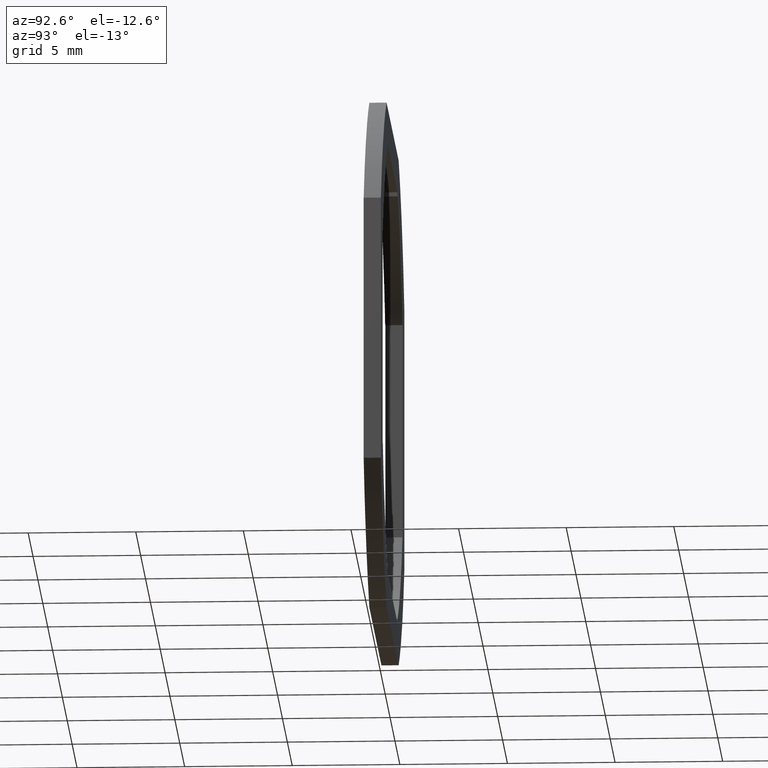
[diagram: clean part render]
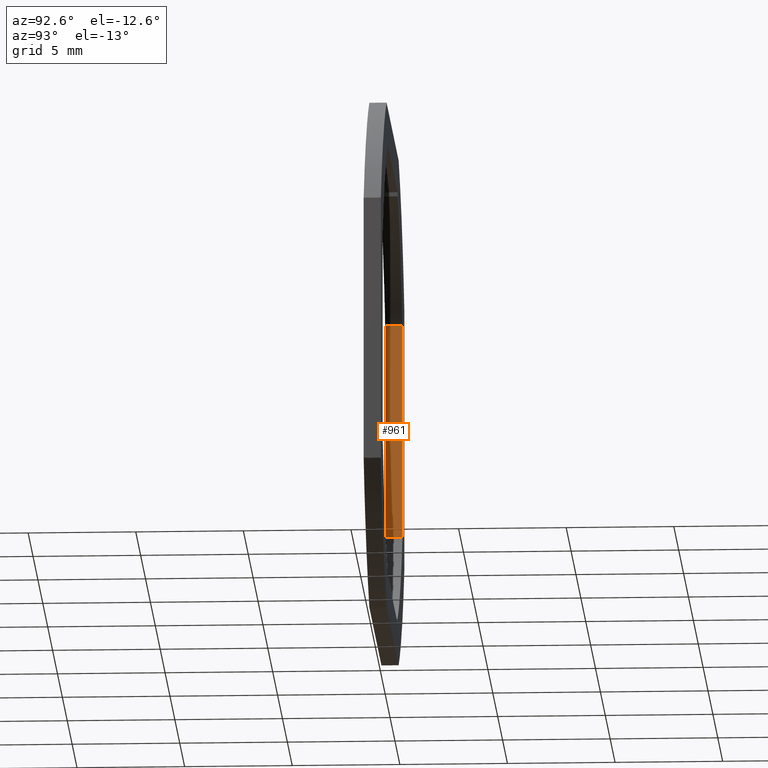
[diagram: same view with one face highlighted and labeled with its STEP entity id]
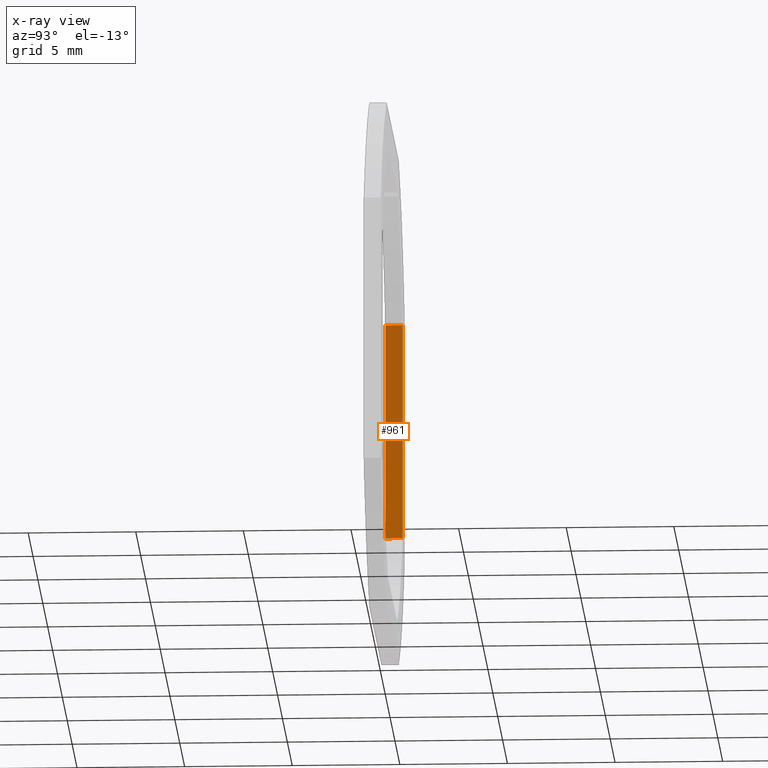
[diagram: x-ray of the same camera — body ghosted, the highlighted face saturated]
A machine part, auxiliary view. The second image highlights one B-rep face of the part: STEP entity #961.
The next image is the same camera in x-ray: the body ghosted, the highlighted face saturated — about 0% of this face is hidden behind the body in this view.
In plain terms, the highlighted face is a freeform B-spline surface patch.
Its self-contained STEP definition (entity closure, byte-faithful):
#242=CARTESIAN_POINT('',(-10.250000486848901,0.0,-5.055690104038380));
#243=VERTEX_POINT('',#242);
#249=CARTESIAN_POINT('',(-10.250000486848901,0.0,5.081069177405820));
#250=VERTEX_POINT('',#249);
#251=CARTESIAN_POINT('',(-10.250000486848901,0.0,5.081069177405820));
#252=CARTESIAN_POINT('',(-10.250000486848901,0.0,-5.055690104038380));
#253=QUASI_UNIFORM_CURVE('',1,(#251,#252),.UNSPECIFIED.,.F.,.U.);
#254=EDGE_CURVE('',#250,#243,#253,.T.);
#476=CARTESIAN_POINT('',(-10.250000486848901,0.800000000000023,5.081069177405820));
#477=VERTEX_POINT('',#476);
#483=CARTESIAN_POINT('',(-10.250000486848901,0.800000000000023,-5.055690104038380));
#484=VERTEX_POINT('',#483);
#485=CARTESIAN_POINT('',(-10.250000486848901,0.800000000000023,5.081069177405820));
#486=CARTESIAN_POINT('',(-10.250000486848901,0.800000000000023,-5.055690104038380));
#487=QUASI_UNIFORM_CURVE('',1,(#485,#486),.UNSPECIFIED.,.F.,.U.);
#488=EDGE_CURVE('',#477,#484,#487,.T.);
#938=CARTESIAN_POINT('',(-10.250000486848901,0.800000000000023,-5.055690104038380));
#939=CARTESIAN_POINT('',(-10.250000486848901,0.0,-5.055690104038380));
#940=QUASI_UNIFORM_CURVE('',1,(#938,#939),.UNSPECIFIED.,.F.,.U.);
#941=EDGE_CURVE('',#484,#243,#940,.T.);
#946=CARTESIAN_POINT('',(-10.250000486848901,-0.039959998449446,-5.562021364597174));
#947=CARTESIAN_POINT('',(-10.250000486848901,-0.039959998449446,5.587399803556782));
#948=CARTESIAN_POINT('',(-10.250000486848901,0.839960019907141,-5.562021364597174));
#949=CARTESIAN_POINT('',(-10.250000486848901,0.839960019907141,5.587399803556782));
#950=B_SPLINE_SURFACE_WITH_KNOTS('',1,1,((#946,#948),(#947,#949)),.UNSPECIFIED.,.F.,.F.,.U.,(2,2),(2,2),(0.0,11.149421168153960),(0.041708334948495,0.958291687403247),.UNSPECIFIED.);
#951=ORIENTED_EDGE('',*,*,#254,.T.);
#952=ORIENTED_EDGE('',*,*,#941,.F.);
#953=ORIENTED_EDGE('',*,*,#488,.F.);
#954=CARTESIAN_POINT('',(-10.250000486848901,0.800000000000023,5.081069177405820));
#955=CARTESIAN_POINT('',(-10.250000486848901,0.0,5.081069177405820));
#956=QUASI_UNIFORM_CURVE('',1,(#954,#955),.UNSPECIFIED.,.F.,.U.);
#957=EDGE_CURVE('',#477,#250,#956,.T.);
#958=ORIENTED_EDGE('',*,*,#957,.T.);
#959=EDGE_LOOP('',(#951,#952,#953,#958));
#960=FACE_OUTER_BOUND('',#959,.T.);
#961=ADVANCED_FACE('',(#960),#950,.F.);